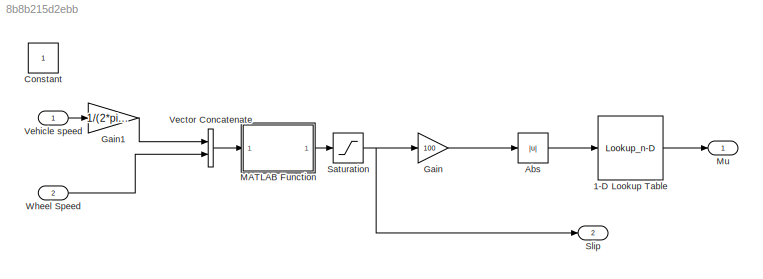
MODEL slx_8b8b215d2ebb
KIND model
CONFIG InitFcn = tyreDataGen;\n
CONFIG StartFcn = tyreDataGen
BLOCK [Lookup_n-D] 1-D Lookup Table
  BreakpointsForDimension1 = [0:100]
  InterpMethod = Cubic spline
  NumberOfTableDimensions = 1
  Ports = [1, 1]
  RndMeth = Simplest
  Table = tyreData(1:101)
BLOCK [Abs] Abs
  SaturateOnIntegerOverflow = off
BLOCK [Constant] Constant
  IOType = siggen
BLOCK [Gain] Gain
  Gain = 100
  OutDataTypeStr = Inherit: Inherit via internal rule
  ParamDataTypeStr = Inherit: Inherit via internal rule
  SaturateOnIntegerOverflow = off
BLOCK [Gain] Gain1
  Gain = 1/(2*pi*Rd)
  OutDataTypeStr = Inherit: Inherit via internal rule
  ParamDataTypeStr = Inherit: Inherit via internal rule
  SaturateOnIntegerOverflow = off
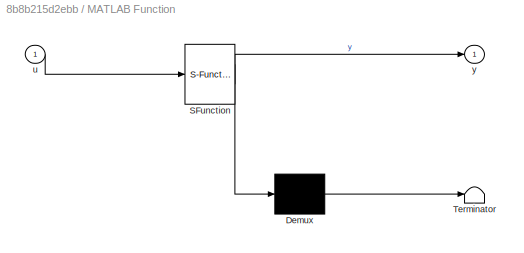
BLOCK [SubSystem] MATLAB Function
  ErrorFcn = Stateflow.Translate.translate
  FunctionWithSeparateData = off
  MaskHideContents = off
  MinAlgLoopOccurrences = off
  Opaque = off
  PermitHierarchicalResolution = ExplicitOnly
  Ports = [1, 1]
  PropExecContextOutsideSubsystem = off
  RTWSystemCode = Auto
  RequestExecContextInheritance = off
  SFBlockType = MATLAB Function
  TreatAsAtomicUnit = on
BLOCK [Demux] MATLAB Function/ Demux 
  Outputs = 1
  Ports = [1, 1]
BLOCK [S-Function] MATLAB Function/ SFunction 
  EnableBusSupport = on
  FunctionName = sf_sfun
  PortCounts = [1 2]
  Ports = [1, 2]
  Tag = Stateflow S-Function tyreModel 2
BLOCK [Terminator] MATLAB Function/ Terminator 
BLOCK [Inport] MATLAB Function/u
  IconDisplay = Port number
BLOCK [Outport] MATLAB Function/y
  IconDisplay = Port number
BLOCK [Outport] Mu
  IconDisplay = Port number
BLOCK [Saturate] Saturation
  InputPortMap = u0
  LowerLimit = -1
  Ports = [1, 1]
  UpperLimit = 1
BLOCK [Outport] Slip
  IconDisplay = Port number
  Port = 2
BLOCK [Concatenate] Vector Concatenate
  Ports = [2, 1]
BLOCK [Inport] Vehicle speed
  IconDisplay = Port number
BLOCK [Inport] Wheel Speed 
  IconDisplay = Port number
  Port = 2
LINE 1-D Lookup Table:1 -> Mu:1
LINE Abs:1 -> 1-D Lookup Table:1
LINE Gain1:1 -> Vector Concatenate:1
LINE Gain:1 -> Abs:1
LINE MATLAB Function:1 -> Saturation:1
NET Saturation:1 -> Gain:1, Slip:1
LINE Vector Concatenate:1 -> MATLAB Function:1
LINE Vehicle speed:1 -> Gain1:1
LINE Wheel Speed :1 -> Vector Concatenate:2
note: NET lines group one-source signal fan-out (src -> all destinations, sorted); 1:1 wires keep LINE
